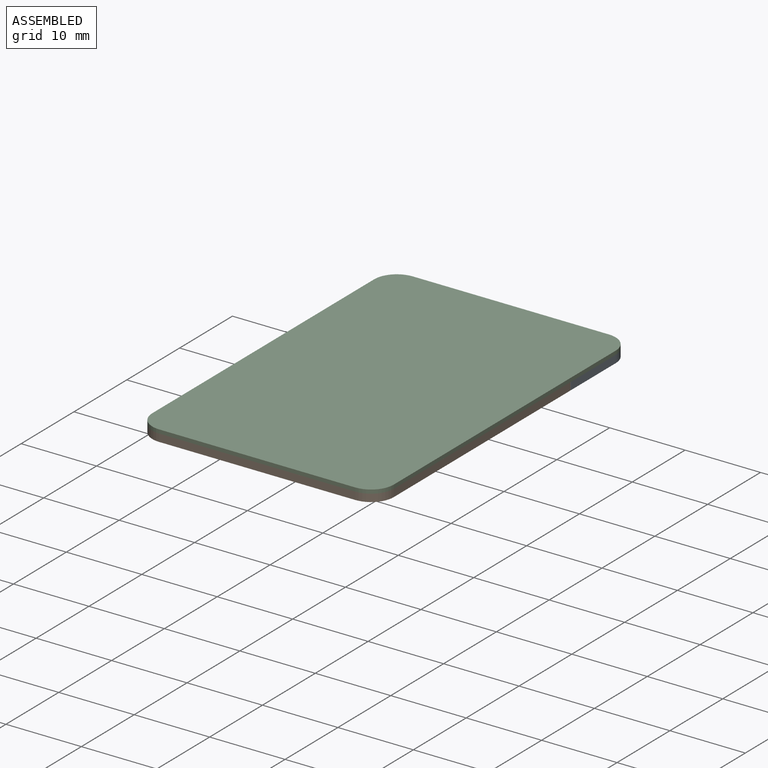
[diagram: assembled view]
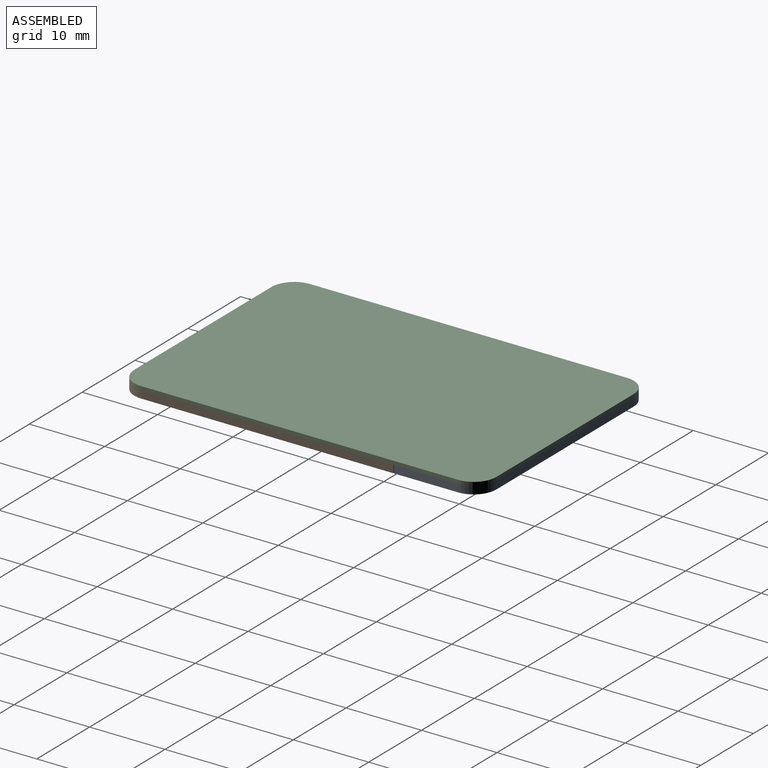
[diagram: assembled view, second angle]
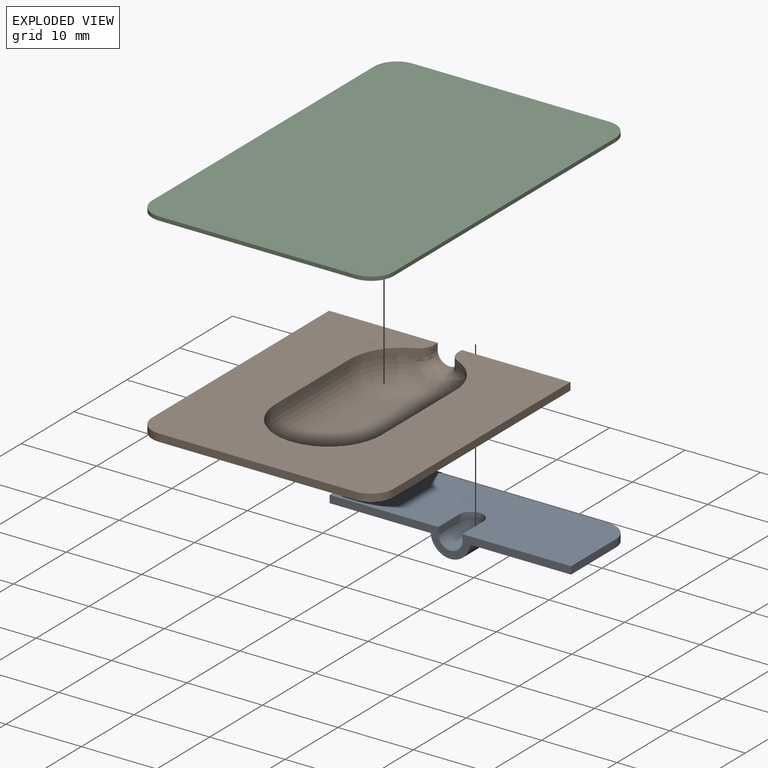
[diagram: exploded view]
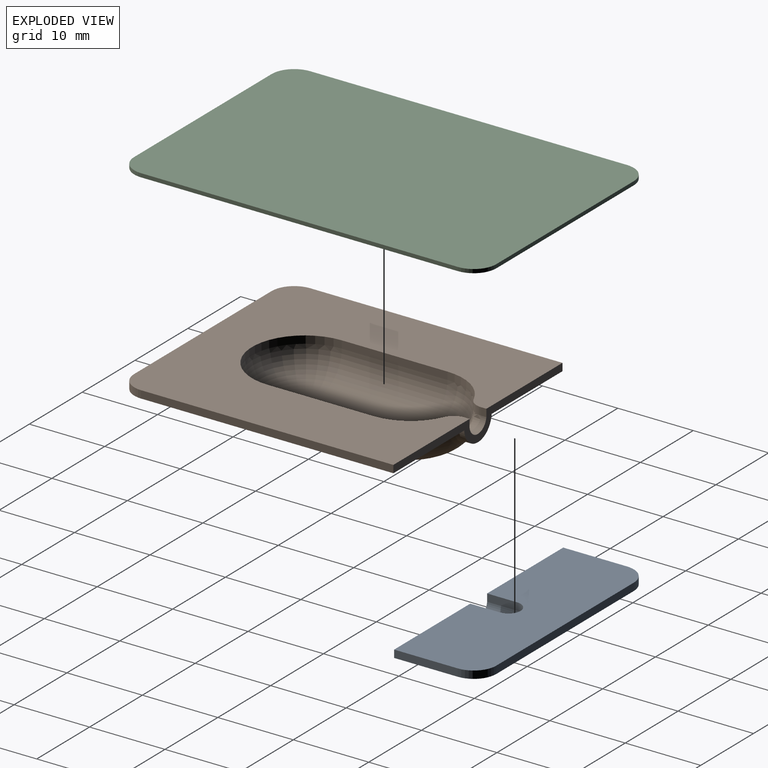
[diagram: exploded view, second angle]
ASSEMBLY  parts=3 mates=2
PART A: 19 faces, bbox 32x11.5x3.4 mm
  f0: torus R=0.01mm, axis (0,0,-1), area 7.1mm2, adj f4,f15,f16,f17
  f1: cylinder r=3mm len=3mm, axis (0,0,-1), area 4.7mm2, adj f2,f9,f10,f14
  f2: plane 26x1mm, normal (0,1,0), area 26mm2, adj f1,f3,f9,f14
  f3: cylinder r=3mm len=3mm, axis (0,0,-1), area 4.7mm2, adj f2,f9,f11,f14
  f4: cylinder r=1.6mm len=3.2mm, axis (0,0,-1), area 5mm2, adj f0,f9,f12,f13
  f5: torus R=0.01mm, axis (0,0,-1), area 19.7mm2, adj f6,f7,f8,f14
  f6: cylinder r=2.6mm len=3.95mm, axis (0,-1,0), area 15.3mm2, adj f5,f8,f14,f18
  f7: cylinder r=2.6mm len=3.95mm, axis (0,-1,0), area 15.3mm2, adj f5,f8,f14,f18
  f8: plane 3.96x0.02mm, normal (0,0,-1), area 0.1mm2, adj f5,f6,f7,f18
  f9: plane 32x11.45mm, normal (0,0,1), area 345.9mm2, adj f1,f2,f3,f4,f10,f11,f12,f13
  f10: plane 8.45x1mm, normal (-1,0,0), area 8.5mm2, adj f1,f9,f14,f18
  f11: plane 8.45x1mm, normal (1,0,0), area 8.5mm2, adj f3,f9,f14,f18
  f12: plane 3.96x1.01mm, normal (-1,0,0), area 4mm2, adj f4,f9,f15,f18
  f13: plane 3.96x1.01mm, normal (1,0,0), area 4mm2, adj f4,f9,f16,f18
  f14: plane 32x11.45mm, normal (0,0,-1), area 331.4mm2, adj f1,f2,f3,f5,f6,f7,f10,f11
  f15: cylinder r=1.6mm len=3.95mm, axis (0,-1,0), area 9.1mm2, adj f0,f12,f17,f18
  f16: cylinder r=1.6mm len=3.95mm, axis (0,-1,0), area 9.1mm2, adj f0,f13,f17,f18
  f17: plane 3.96x0.02mm, normal (0,0,1), area 0.1mm2, adj f0,f15,f16,f18
  f18: plane 32x3.4mm, normal (0,-1,0), area 35mm2, adj f6,f7,f8,f9,f10,f11,f12,f13
PART B: 39 faces, bbox 32x36.5x6 mm
  f0: torus R=3mm, axis (0,0,1), area 98.9mm2, adj f1,f3,f4,f8,f9,f10,f13,f18
  f1: plane 20x6mm, normal (0,0,1), area 112.3mm2, adj f0,f2,f3,f4
  f2: torus R=3mm, axis (0,0,1), area 109.5mm2, adj f1,f3,f4,f25
  f3: cylinder r=4mm len=14mm, axis (0,-1,0), area 88mm2, adj f0,f1,f2,f19
  f4: cylinder r=4mm len=14mm, axis (0,1,0), area 88mm2, adj f0,f1,f2,f12
  f5: plane 1.01x0.02mm, normal (0,0,1), area 0mm2, adj f6,f7,f9,f38
  f6: cylinder r=1.6mm len=1.59mm, axis (0,-1,0), area 2mm2, adj f5,f10,f15,f38
  f7: cylinder r=1.6mm len=1.59mm, axis (0,-1,0), area 2mm2, adj f5,f8,f16,f38
  f8: bspline ~3.43x2.78mm, area 6.2mm2, adj f0,f7,f9,f17
  f9: torus R=7.94mm, axis (0,0,1), area 0mm2, adj f0,f5,f8,f10
  f10: bspline ~3.43x2.78mm, area 6.2mm2, adj f0,f6,f9,f14
  f11: plane 36.47x32.02mm, normal (0,0,-1), area 731.6mm2, adj f20,f21,f22,f23,f24,f30,f31,f32
  f12: plane 14x1mm, normal (1,0,0), area 14mm2, adj f4,f13,f25,f26
  f13: cylinder r=7mm len=6.42mm, axis (0,0,-1), area 8.1mm2, adj f0,f12,f14,f26
  f14: extruded ~1.83x1.2mm, area 2.3mm2, adj f10,f13,f15,f26
  f15: plane 1.01x0.71mm, normal (1,0,0), area 0.7mm2, adj f6,f14,f26,f38
  f16: plane 1.01x0.71mm, normal (-1,0,0), area 0.7mm2, adj f7,f17,f26,f38
  f17: extruded ~1.83x1.2mm, area 2.3mm2, adj f8,f16,f18,f26
  f18: cylinder r=7mm len=6.42mm, axis (0,0,-1), area 8.1mm2, adj f0,f17,f19,f26
  f19: plane 14x1mm, normal (-1,0,0), area 14mm2, adj f3,f18,f25,f26
  f20: plane 33.45x1mm, normal (1,0,0), area 33.5mm2, adj f11,f24,f26,f38
  f21: plane 33.45x1mm, normal (-1,0,0), area 33.5mm2, adj f11,f22,f26,f38
  f22: cylinder r=3mm len=3mm, axis (0,0,-1), area 4.7mm2, adj f11,f21,f23,f26
  f23: plane 26x1mm, normal (0,-1,0), area 26mm2, adj f11,f22,f24,f26
  f24: cylinder r=3mm len=3mm, axis (0,0,-1), area 4.7mm2, adj f11,f20,f23,f26
  f25: cylinder r=7mm len=14mm, axis (0,0,-1), area 22mm2, adj f2,f12,f19,f26
  f26: plane 36.45x32mm, normal (0,0,1), area 805.5mm2, adj f12,f13,f14,f15,f16,f17,f18,f19
  f27: plane 20x6mm, normal (0,0,-1), area 112.3mm2, adj f30,f31,f32,f37
  f28: plane 1.01x0.02mm, normal (0,0,-1), area 0mm2, adj f29,f34,f36,f38
  f29: torus R=7.94mm, axis (0,0,1), area 0mm2, adj f28,f33,f35,f37
  f30: cylinder r=5mm len=14mm, axis (0,-1,0), area 110mm2, adj f11,f27,f32,f37
  f31: cylinder r=5mm len=14mm, axis (0,1,0), area 110mm2, adj f11,f27,f32,f37
  f32: torus R=3mm, axis (0,0,1), area 152.6mm2, adj f11,f27,f30,f31
  f33: bspline ~3.92x3.47mm, area 4.5mm2, adj f11,f29,f34,f37
  f34: cylinder r=2.6mm len=2.59mm, axis (0,-1,0), area 3.3mm2, adj f11,f28,f33,f38
  f35: bspline ~3.92x3.47mm, area 4.5mm2, adj f11,f29,f36,f37
  f36: cylinder r=2.6mm len=2.59mm, axis (0,-1,0), area 3.3mm2, adj f11,f28,f35,f38
  f37: torus R=3mm, axis (0,0,1), area 137.5mm2, adj f11,f27,f29,f30,f31,f33,f35
  f38: plane 32x3.4mm, normal (0,1,0), area 35mm2, adj f5,f6,f7,f11,f15,f16,f20,f21
PART C: 10 faces, bbox 32x48x0.5 mm
  f0: plane 42x0.5mm, normal (1,0,0), area 21mm2, adj f1,f7,f8,f9
  f1: cylinder r=3mm len=3mm, axis (0,0,-1), area 2.4mm2, adj f0,f2,f8,f9
  f2: plane 26x0.5mm, normal (0,1,0), area 13mm2, adj f1,f3,f8,f9
  f3: cylinder r=3mm len=3mm, axis (0,0,-1), area 2.4mm2, adj f2,f4,f8,f9
  f4: plane 42x0.5mm, normal (-1,0,0), area 21mm2, adj f3,f5,f8,f9
  f5: cylinder r=3mm len=3mm, axis (0,0,-1), area 2.4mm2, adj f4,f6,f8,f9
  f6: plane 26x0.5mm, normal (0,-1,0), area 13mm2, adj f5,f7,f8,f9
  f7: cylinder r=3mm len=3mm, axis (0,0,-1), area 2.4mm2, adj f0,f6,f8,f9
  f8: plane 48x32mm, normal (0,0,1), area 1528.3mm2, adj f0,f1,f2,f3,f4,f5,f6,f7
  f9: plane 48x32mm, normal (0,0,-1), area 1528.3mm2, adj f0,f1,f2,f3,f4,f5,f6,f7
PLACE A t=(-33.76,-35.61,30.59)mm
PLACE B t=(-33.76,-35.61,30.59)mm
PLACE C rot(axis=(0,-1,0),180deg) t=(-33.76,-31.61,32.09)mm
MATE fastened A.f1 <-> C.f1  axis (0,0,1) through (-46.76,-10.61,31.59)mm
MATE fastened B.f22 <-> C.f7  axis (0,0,1) through (-46.76,-52.61,31.59)mm
